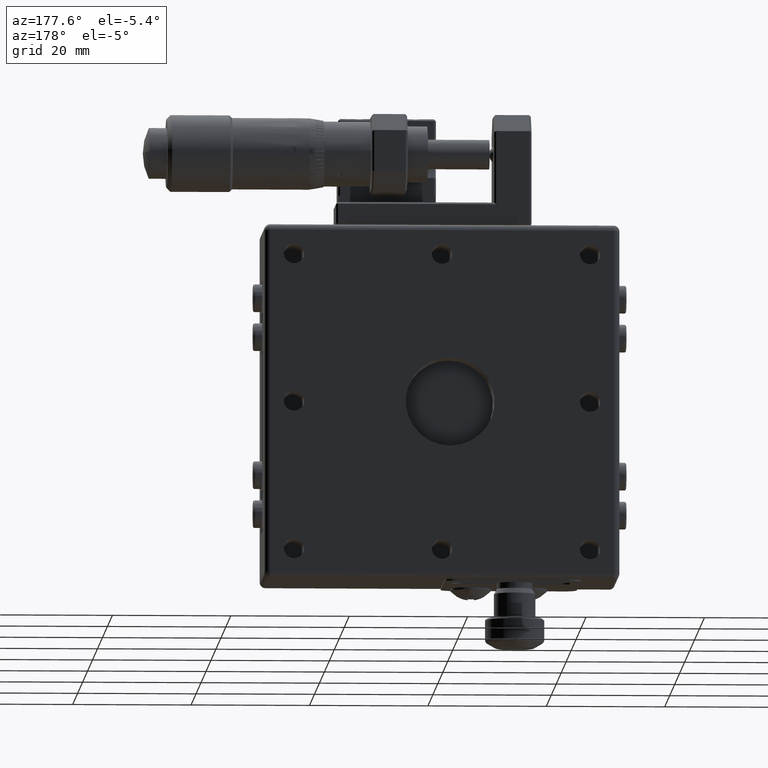
[diagram: clean part render]
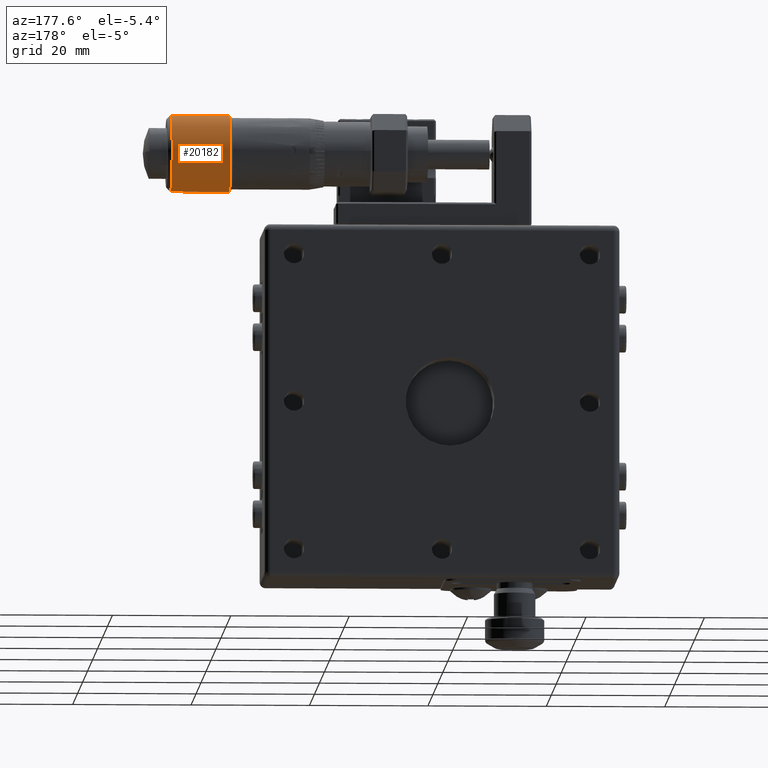
[diagram: same view with one face highlighted and labeled with its STEP entity id]
A machine part, auxiliary view. The second image highlights one B-rep face of the part: STEP entity #20182.
In plain terms, the highlighted cylindrical surface (partial cylindrical patch) has radius 6.5 mm, axis along (1, 0, 0).
Its self-contained STEP definition (entity closure, byte-faithful):
#457 = DIRECTION ( 'NONE',  ( 0.000000000000000000, 0.000000000000000000, -1.000000000000000000 ) ) ;
#5188 = VERTEX_POINT ( 'NONE', #49541 ) ;
#5635 = EDGE_CURVE ( 'NONE', #7549, #5188, #27897, .T. ) ;
#5783 = VECTOR ( 'NONE', #24901, 1000.000000000000000 ) ;
#7549 = VERTEX_POINT ( 'NONE', #11867 ) ;
#7963 = CARTESIAN_POINT ( 'NONE',  ( 46.92353433835849330, 2.606365159128975151, 42.50000000000000000 ) ) ;
#9723 = ORIENTED_EDGE ( 'NONE', *, *, #52708, .T. ) ;
#10342 = VERTEX_POINT ( 'NONE', #51707 ) ;
#11074 = ORIENTED_EDGE ( 'NONE', *, *, #5635, .T. ) ;
#11867 = CARTESIAN_POINT ( 'NONE',  ( 46.92353433835849330, 2.606365159128975151, 49.00000100000009695 ) ) ;
#11977 = AXIS2_PLACEMENT_3D ( 'NONE', #17453, #26068, #457 ) ;
#12087 = CARTESIAN_POINT ( 'NONE',  ( 51.62353433835849614, 2.606365159128975151, 35.99999899999995279 ) ) ;
#16609 = DIRECTION ( 'NONE',  ( 0.000000000000000000, 0.000000000000000000, -1.000000000000000000 ) ) ;
#17453 = CARTESIAN_POINT ( 'NONE',  ( 51.62353433835849614, 2.606365159128975151, 42.50000000000000000 ) ) ;
#19682 = DIRECTION ( 'NONE',  ( 1.000000000000000000, 2.465190328815659976E-32, 0.000000000000000000 ) ) ;
#20182 = ADVANCED_FACE ( 'NONE', ( #21624 ), #38605, .T. ) ;
#20843 = EDGE_CURVE ( 'NONE', #44436, #5188, #42452, .T. ) ;
#21624 = FACE_OUTER_BOUND ( 'NONE', #46486, .T. ) ;
#24901 = DIRECTION ( 'NONE',  ( 1.000000000000000000, 2.465190328815659976E-32, 2.465190328815659976E-32 ) ) ;
#25347 = AXIS2_PLACEMENT_3D ( 'NONE', #44746, #19682, #30663 ) ;
#26068 = DIRECTION ( 'NONE',  ( 1.000000000000000000, 2.465190328815659976E-32, 0.000000000000000000 ) ) ;
#27897 = CIRCLE ( 'NONE', #42146, 6.500000999999998363 ) ;
#30005 = CARTESIAN_POINT ( 'NONE',  ( 37.02353433835849472, 2.606365159128975151, 35.99999899999995279 ) ) ;
#30663 = DIRECTION ( 'NONE',  ( 0.000000000000000000, 0.000000000000000000, 1.000000000000000000 ) ) ;
#30874 = ORIENTED_EDGE ( 'NONE', *, *, #52956, .T. ) ;
#37467 = DIRECTION ( 'NONE',  ( -1.000000000000000000, -2.465190328815659976E-32, 0.000000000000000000 ) ) ;
#38605 = CYLINDRICAL_SURFACE ( 'NONE', #11977, 6.500000999999998363 ) ;
#42146 = AXIS2_PLACEMENT_3D ( 'NONE', #7963, #37467, #16609 ) ;
#42452 = LINE ( 'NONE', #12087, #48523 ) ;
#44436 = VERTEX_POINT ( 'NONE', #30005 ) ;
#44746 = CARTESIAN_POINT ( 'NONE',  ( 37.02353433835849472, 2.606365159128975151, 42.50000000000000000 ) ) ;
#45510 = CARTESIAN_POINT ( 'NONE',  ( 51.62353433835849614, 2.606365159128975151, 49.00000100000009695 ) ) ;
#45798 = DIRECTION ( 'NONE',  ( 1.000000000000000000, 2.465190328815659976E-32, 2.465190328815659976E-32 ) ) ;
#46486 = EDGE_LOOP ( 'NONE', ( #9723, #30874, #11074, #53843 ) ) ;
#48523 = VECTOR ( 'NONE', #45798, 1000.000000000000000 ) ;
#49332 = CIRCLE ( 'NONE', #25347, 6.500000999999998363 ) ;
#49541 = CARTESIAN_POINT ( 'NONE',  ( 46.92353433835849330, 2.606365159128975151, 35.99999899999995279 ) ) ;
#50249 = LINE ( 'NONE', #45510, #5783 ) ;
#51707 = CARTESIAN_POINT ( 'NONE',  ( 37.02353433835849472, 2.606365159128975151, 49.00000100000009695 ) ) ;
#52708 = EDGE_CURVE ( 'NONE', #44436, #10342, #49332, .T. ) ;
#52956 = EDGE_CURVE ( 'NONE', #10342, #7549, #50249, .T. ) ;
#53843 = ORIENTED_EDGE ( 'NONE', *, *, #20843, .F. ) ;